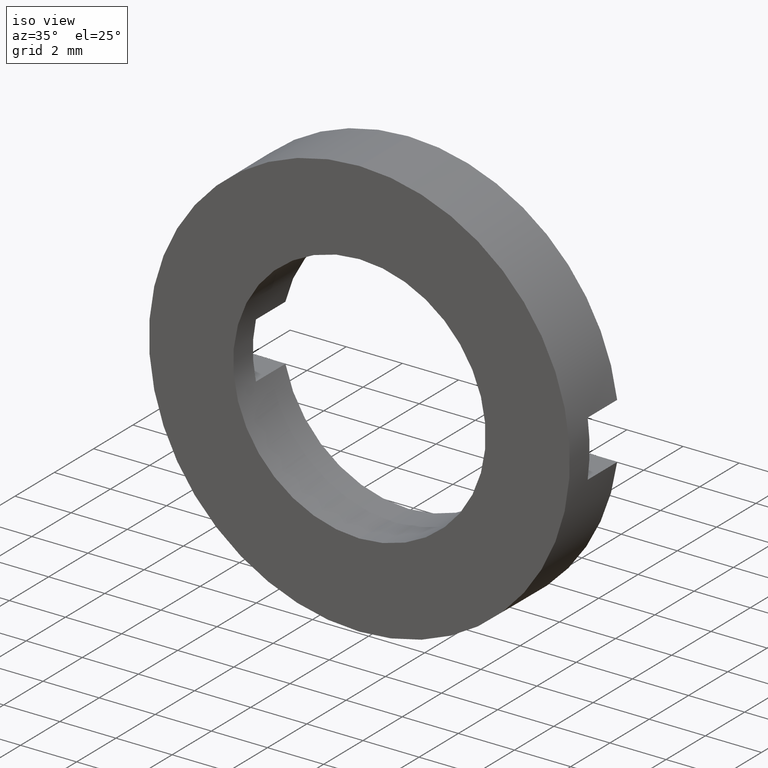
[diagram: clean part render]
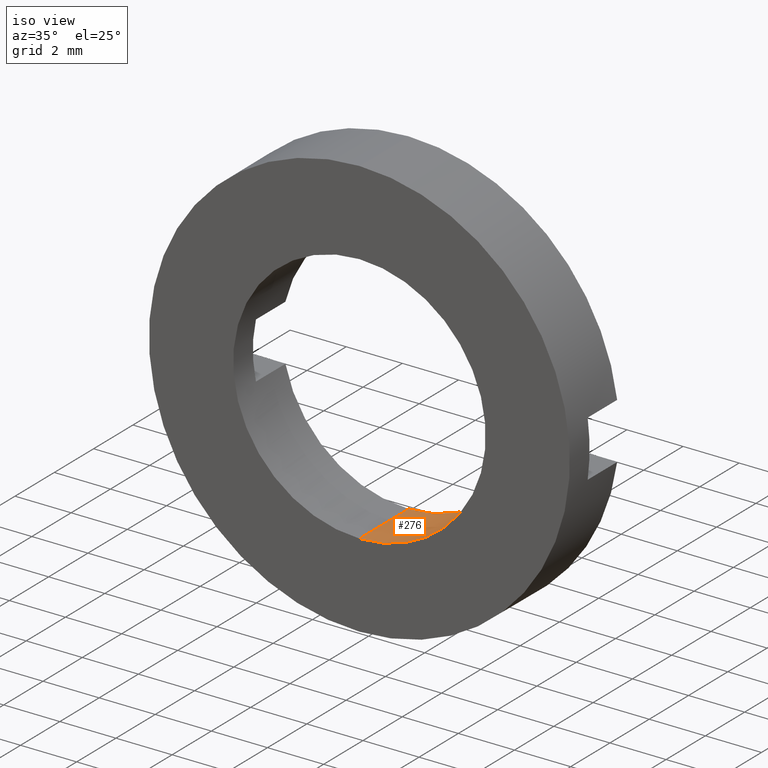
[diagram: same view with one face highlighted and labeled with its STEP entity id]
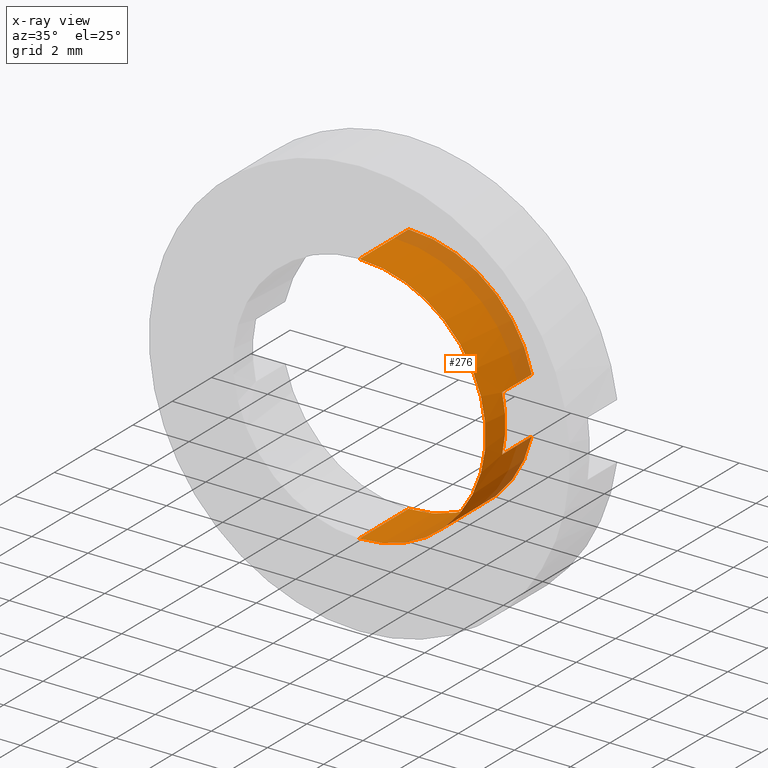
[diagram: x-ray of the same camera — body ghosted, the highlighted face saturated]
A machine part, iso view. The second image highlights one B-rep face of the part: STEP entity #276.
The next image is the same camera in x-ray: the body ghosted, the highlighted face saturated — about 23% of this face is hidden behind the body in this view.
In plain terms, the highlighted cylindrical surface (partial cylindrical patch) has radius 4.5 mm, axis along (-0, 1, -0).
Its self-contained STEP definition (entity closure, byte-faithful):
#5 = CARTESIAN_POINT ( 'NONE',  ( 4.387482193696067500, -1.964249787179434000, 0.9999999999999995600 ) ) ;
#34 = EDGE_LOOP ( 'NONE', ( #435, #162, #318, #334, #581, #429, #141, #82 ) ) ;
#38 = DIRECTION ( 'NONE',  ( 0.0000000000000000000, 0.0000000000000000000, 1.000000000000000000 ) ) ;
#47 = FACE_OUTER_BOUND ( 'NONE', #34, .T. ) ;
#61 = EDGE_CURVE ( 'NONE', #193, #331, #136, .T. ) ;
#64 = CARTESIAN_POINT ( 'NONE',  ( 5.510910596163098400E-016, -4.464249787179428900, -4.500000000000007100 ) ) ;
#70 = AXIS2_PLACEMENT_3D ( 'NONE', #534, #220, #266 ) ;
#77 = VECTOR ( 'NONE', #242, 1000.000000000000000 ) ;
#82 = ORIENTED_EDGE ( 'NONE', *, *, #179, .T. ) ;
#83 = CARTESIAN_POINT ( 'NONE',  ( 0.0000000000000000000, -1.964249787179434000, 4.500000000000007100 ) ) ;
#98 = VERTEX_POINT ( 'NONE', #484 ) ;
#107 = CARTESIAN_POINT ( 'NONE',  ( 4.387482193696068400, 56.26084262701361600, 1.000000000000000000 ) ) ;
#115 = EDGE_CURVE ( 'NONE', #395, #384, #309, .T. ) ;
#131 = CARTESIAN_POINT ( 'NONE',  ( 0.0000000000000000000, -1.964249787179434000, 0.0000000000000000000 ) ) ;
#132 = AXIS2_PLACEMENT_3D ( 'NONE', #451, #140, #452 ) ;
#136 = CIRCLE ( 'NONE', #557, 4.500000000000007100 ) ;
#138 = DIRECTION ( 'NONE',  ( -0.0000000000000000000, 1.000000000000000000, -0.0000000000000000000 ) ) ;
#140 = DIRECTION ( 'NONE',  ( -0.0000000000000000000, 1.000000000000000000, -0.0000000000000000000 ) ) ;
#141 = ORIENTED_EDGE ( 'NONE', *, *, #323, .T. ) ;
#151 = AXIS2_PLACEMENT_3D ( 'NONE', #131, #536, #38 ) ;
#153 = LINE ( 'NONE', #107, #489 ) ;
#162 = ORIENTED_EDGE ( 'NONE', *, *, #382, .F. ) ;
#179 = EDGE_CURVE ( 'NONE', #444, #98, #571, .T. ) ;
#192 = CARTESIAN_POINT ( 'NONE',  ( 5.510910596163098400E-016, 56.26084262701361600, -4.500000000000007100 ) ) ;
#193 = VERTEX_POINT ( 'NONE', #83 ) ;
#208 = DIRECTION ( 'NONE',  ( 0.0000000000000000000, -1.000000000000000000, 0.0000000000000000000 ) ) ;
#212 = AXIS2_PLACEMENT_3D ( 'NONE', #461, #336, #366 ) ;
#220 = DIRECTION ( 'NONE',  ( -0.0000000000000000000, -1.000000000000000000, -0.0000000000000000000 ) ) ;
#225 = DIRECTION ( 'NONE',  ( -0.0000000000000000000, 1.000000000000000000, -0.0000000000000000000 ) ) ;
#242 = DIRECTION ( 'NONE',  ( -0.0000000000000000000, 1.000000000000000000, -0.0000000000000000000 ) ) ;
#243 = EDGE_CURVE ( 'NONE', #554, #193, #559, .T. ) ;
#265 = DIRECTION ( 'NONE',  ( 0.0000000000000000000, 0.0000000000000000000, 1.000000000000000000 ) ) ;
#266 = DIRECTION ( 'NONE',  ( 8.881784197001253900E-015, 0.0000000000000000000, 1.000000000000000000 ) ) ;
#276 = ADVANCED_FACE ( 'NONE', ( #47 ), #417, .F. ) ;
#278 = CARTESIAN_POINT ( 'NONE',  ( 0.0000000000000000000, 56.26084262701361600, 4.500000000000007100 ) ) ;
#281 = DIRECTION ( 'NONE',  ( -0.0000000000000000000, 1.000000000000000000, -0.0000000000000000000 ) ) ;
#286 = CIRCLE ( 'NONE', #212, 4.500000000000007100 ) ;
#296 = CARTESIAN_POINT ( 'NONE',  ( 4.387482193696067500, -1.964249787179434000, -0.9999999999999995600 ) ) ;
#309 = CIRCLE ( 'NONE', #70, 4.500000000000007100 ) ;
#318 = ORIENTED_EDGE ( 'NONE', *, *, #243, .T. ) ;
#323 = EDGE_CURVE ( 'NONE', #395, #444, #529, .T. ) ;
#329 = EDGE_CURVE ( 'NONE', #519, #98, #436, .T. ) ;
#331 = VERTEX_POINT ( 'NONE', #5 ) ;
#334 = ORIENTED_EDGE ( 'NONE', *, *, #61, .T. ) ;
#335 = VECTOR ( 'NONE', #138, 1000.000000000000000 ) ;
#336 = DIRECTION ( 'NONE',  ( -0.0000000000000000000, 1.000000000000000000, -0.0000000000000000000 ) ) ;
#349 = CARTESIAN_POINT ( 'NONE',  ( 0.0000000000000000000, -4.464249787179428900, 4.500000000000007100 ) ) ;
#366 = DIRECTION ( 'NONE',  ( 0.0000000000000000000, 0.0000000000000000000, 1.000000000000000000 ) ) ;
#367 = CARTESIAN_POINT ( 'NONE',  ( 4.387482193696067500, -3.464249787179428400, 0.9999999999999995600 ) ) ;
#369 = CARTESIAN_POINT ( 'NONE',  ( 4.387482193696068400, 56.26084262701361600, -1.000000000000000000 ) ) ;
#382 = EDGE_CURVE ( 'NONE', #554, #519, #286, .T. ) ;
#384 = VERTEX_POINT ( 'NONE', #367 ) ;
#395 = VERTEX_POINT ( 'NONE', #411 ) ;
#411 = CARTESIAN_POINT ( 'NONE',  ( 4.387482193696067500, -3.464249787179428400, -0.9999999999999995600 ) ) ;
#417 = CYLINDRICAL_SURFACE ( 'NONE', #132, 4.500000000000007100 ) ;
#429 = ORIENTED_EDGE ( 'NONE', *, *, #115, .F. ) ;
#435 = ORIENTED_EDGE ( 'NONE', *, *, #329, .F. ) ;
#436 = LINE ( 'NONE', #192, #77 ) ;
#444 = VERTEX_POINT ( 'NONE', #296 ) ;
#447 = CARTESIAN_POINT ( 'NONE',  ( 0.0000000000000000000, -1.964249787179434000, 0.0000000000000000000 ) ) ;
#451 = CARTESIAN_POINT ( 'NONE',  ( 0.0000000000000000000, 56.26084262701361600, 0.0000000000000000000 ) ) ;
#452 = DIRECTION ( 'NONE',  ( 0.0000000000000000000, 0.0000000000000000000, 1.000000000000000000 ) ) ;
#461 = CARTESIAN_POINT ( 'NONE',  ( 0.0000000000000000000, -4.464249787179428900, 0.0000000000000000000 ) ) ;
#484 = CARTESIAN_POINT ( 'NONE',  ( 5.510910596163098400E-016, -1.964249787179434000, -4.500000000000007100 ) ) ;
#489 = VECTOR ( 'NONE', #208, 1000.000000000000000 ) ;
#507 = EDGE_CURVE ( 'NONE', #331, #384, #153, .T. ) ;
#519 = VERTEX_POINT ( 'NONE', #64 ) ;
#529 = LINE ( 'NONE', #369, #561 ) ;
#534 = CARTESIAN_POINT ( 'NONE',  ( 0.0000000000000000000, -3.464249787179428400, 0.0000000000000000000 ) ) ;
#536 = DIRECTION ( 'NONE',  ( -0.0000000000000000000, 1.000000000000000000, -0.0000000000000000000 ) ) ;
#554 = VERTEX_POINT ( 'NONE', #349 ) ;
#557 = AXIS2_PLACEMENT_3D ( 'NONE', #447, #225, #265 ) ;
#559 = LINE ( 'NONE', #278, #335 ) ;
#561 = VECTOR ( 'NONE', #281, 1000.000000000000000 ) ;
#571 = CIRCLE ( 'NONE', #151, 4.500000000000007100 ) ;
#581 = ORIENTED_EDGE ( 'NONE', *, *, #507, .T. ) ;